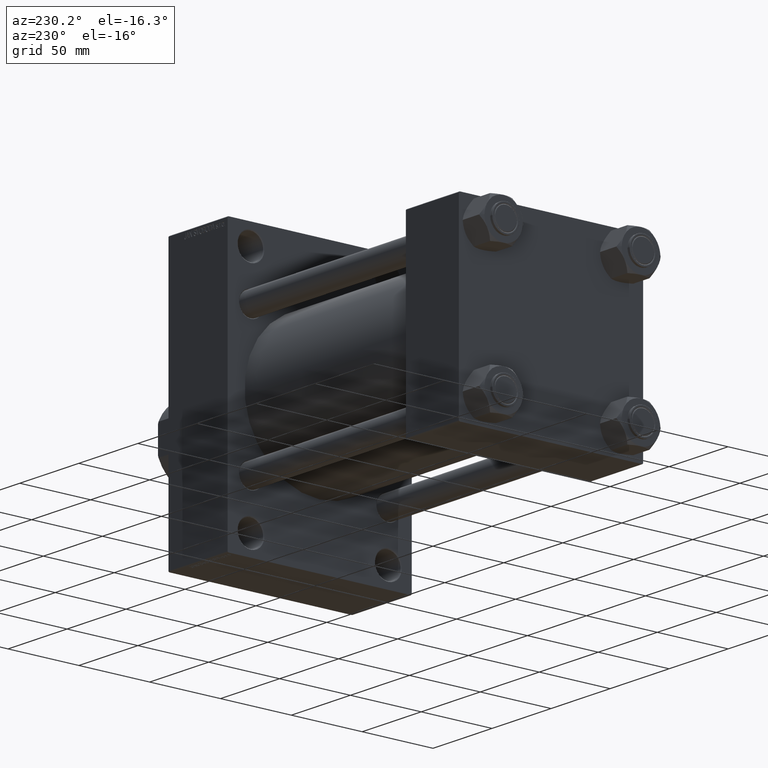
[diagram: clean part render]
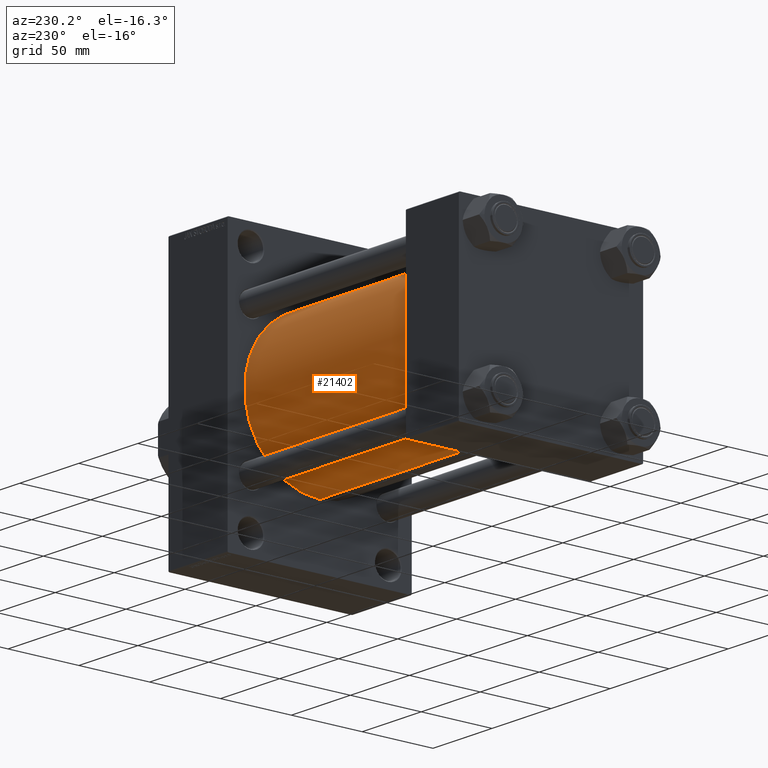
[diagram: same view with one face highlighted and labeled with its STEP entity id]
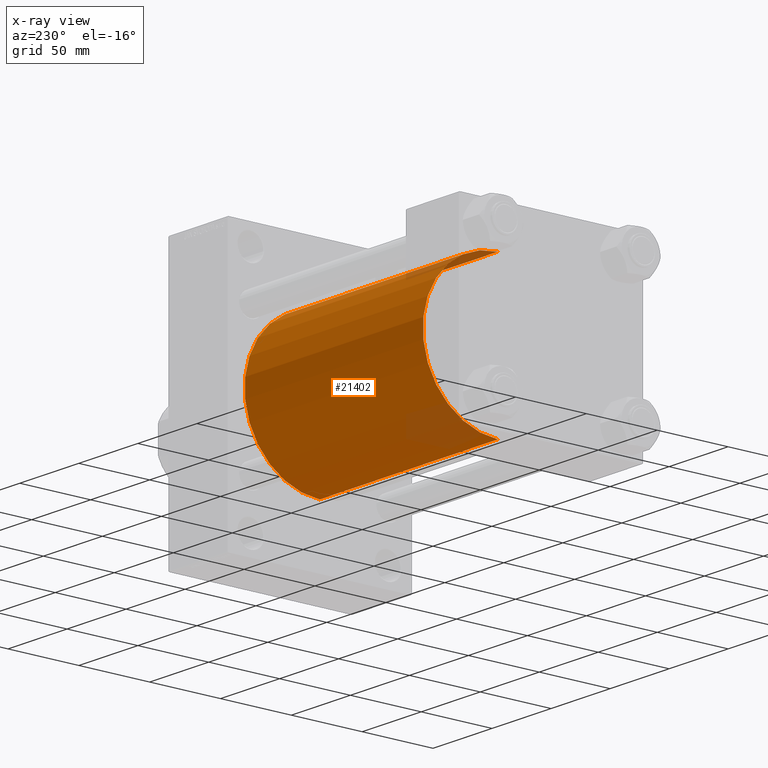
[diagram: x-ray of the same camera — body ghosted, the highlighted face saturated]
A machine part, auxiliary view. The second image highlights one B-rep face of the part: STEP entity #21402.
The next image is the same camera in x-ray: the body ghosted, the highlighted face saturated — about 8% of this face is hidden behind the body in this view.
In plain terms, the highlighted cylindrical surface (partial cylindrical patch) has radius 53 mm, axis along (-1, -0, -0).
Its self-contained STEP definition (entity closure, byte-faithful):
#1630 = CARTESIAN_POINT ( 'NONE',  ( 196.0000000000000000, 3.888542821515762466E-15, -53.00000000000000711 ) ) ;
#2457 = CARTESIAN_POINT ( 'NONE',  ( 196.0000000000000000, -2.602085213965210642E-15, 53.00000000000000711 ) ) ;
#3352 = EDGE_CURVE ( 'NONE', #45499, #5011, #6329, .T. ) ;
#4815 = ORIENTED_EDGE ( 'NONE', *, *, #33892, .F. ) ;
#5011 = VERTEX_POINT ( 'NONE', #13256 ) ;
#5744 = AXIS2_PLACEMENT_3D ( 'NONE', #8504, #42208, #20153 ) ;
#6329 = LINE ( 'NONE', #2457, #36438 ) ;
#7967 = CARTESIAN_POINT ( 'NONE',  ( 196.0000000000000000, -2.602085213965210642E-15, 0.000000000000000000 ) ) ;
#8504 = CARTESIAN_POINT ( 'NONE',  ( 44.99999999999998579, -2.602085213965210642E-15, 0.000000000000000000 ) ) ;
#8789 = EDGE_LOOP ( 'NONE', ( #4815, #12197, #34915, #17582 ) ) ;
#9060 = EDGE_CURVE ( 'NONE', #32375, #5011, #38261, .T. ) ;
#9154 = CARTESIAN_POINT ( 'NONE',  ( 44.99999999999998579, 3.888542821515762466E-15, -53.00000000000000711 ) ) ;
#10684 = DIRECTION ( 'NONE',  ( -1.000000000000000000, -0.000000000000000000, -0.000000000000000000 ) ) ;
#11460 = DIRECTION ( 'NONE',  ( -1.000000000000000000, -0.000000000000000000, -0.000000000000000000 ) ) ;
#11835 = AXIS2_PLACEMENT_3D ( 'NONE', #7967, #19125, #19368 ) ;
#12197 = ORIENTED_EDGE ( 'NONE', *, *, #37587, .T. ) ;
#13256 = CARTESIAN_POINT ( 'NONE',  ( 44.99999999999998579, -2.602085213965210642E-15, 53.00000000000000711 ) ) ;
#17115 = CARTESIAN_POINT ( 'NONE',  ( 196.0000000000000000, 3.888542821515762466E-15, -53.00000000000000711 ) ) ;
#17582 = ORIENTED_EDGE ( 'NONE', *, *, #3352, .F. ) ;
#19125 = DIRECTION ( 'NONE',  ( 1.000000000000000000, 0.000000000000000000, 0.000000000000000000 ) ) ;
#19368 = DIRECTION ( 'NONE',  ( 0.000000000000000000, 0.000000000000000000, -1.000000000000000000 ) ) ;
#20153 = DIRECTION ( 'NONE',  ( 0.000000000000000000, 0.000000000000000000, 1.000000000000000000 ) ) ;
#21402 = ADVANCED_FACE ( 'NONE', ( #31848 ), #43454, .T. ) ;
#22310 = AXIS2_PLACEMENT_3D ( 'NONE', #32561, #36197, #47339 ) ;
#22694 = CIRCLE ( 'NONE', #11835, 53.00000000000000711 ) ;
#25718 = VECTOR ( 'NONE', #11460, 1000.000000000000000 ) ;
#31095 = CARTESIAN_POINT ( 'NONE',  ( 196.0000000000000000, -2.602085213965210642E-15, 53.00000000000000711 ) ) ;
#31848 = FACE_OUTER_BOUND ( 'NONE', #8789, .T. ) ;
#32375 = VERTEX_POINT ( 'NONE', #9154 ) ;
#32561 = CARTESIAN_POINT ( 'NONE',  ( 196.0000000000000000, -2.602085213965210642E-15, 0.000000000000000000 ) ) ;
#33892 = EDGE_CURVE ( 'NONE', #47969, #45499, #22694, .T. ) ;
#34915 = ORIENTED_EDGE ( 'NONE', *, *, #9060, .T. ) ;
#36197 = DIRECTION ( 'NONE',  ( -1.000000000000000000, -0.000000000000000000, -0.000000000000000000 ) ) ;
#36438 = VECTOR ( 'NONE', #10684, 1000.000000000000000 ) ;
#37587 = EDGE_CURVE ( 'NONE', #47969, #32375, #46002, .T. ) ;
#38261 = CIRCLE ( 'NONE', #5744, 53.00000000000000711 ) ;
#42208 = DIRECTION ( 'NONE',  ( 1.000000000000000000, -0.000000000000000000, 0.000000000000000000 ) ) ;
#43454 = CYLINDRICAL_SURFACE ( 'NONE', #22310, 53.00000000000000711 ) ;
#45499 = VERTEX_POINT ( 'NONE', #31095 ) ;
#46002 = LINE ( 'NONE', #1630, #25718 ) ;
#47339 = DIRECTION ( 'NONE',  ( 0.000000000000000000, 0.000000000000000000, 1.000000000000000000 ) ) ;
#47969 = VERTEX_POINT ( 'NONE', #17115 ) ;